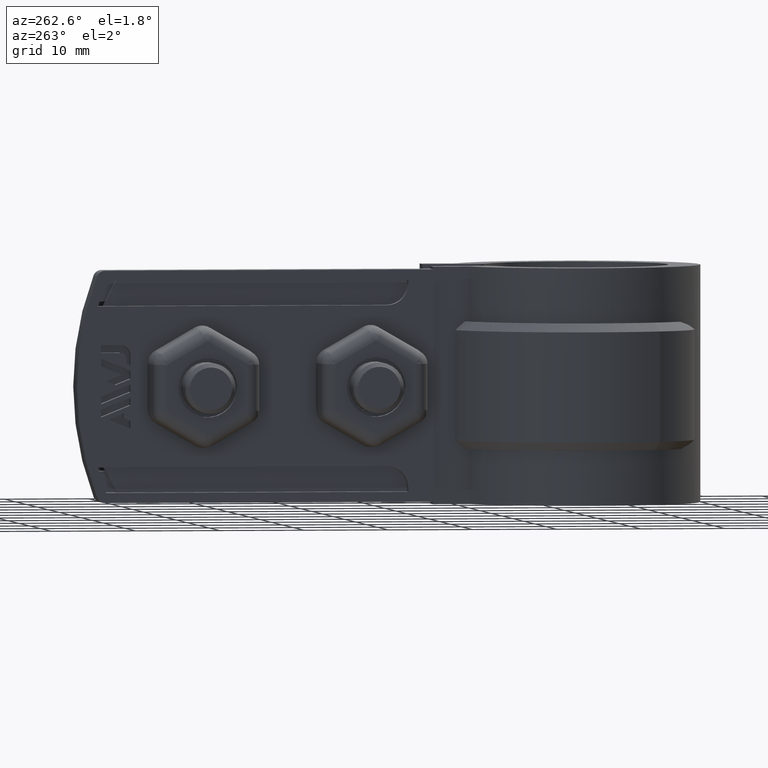
[diagram: clean part render]
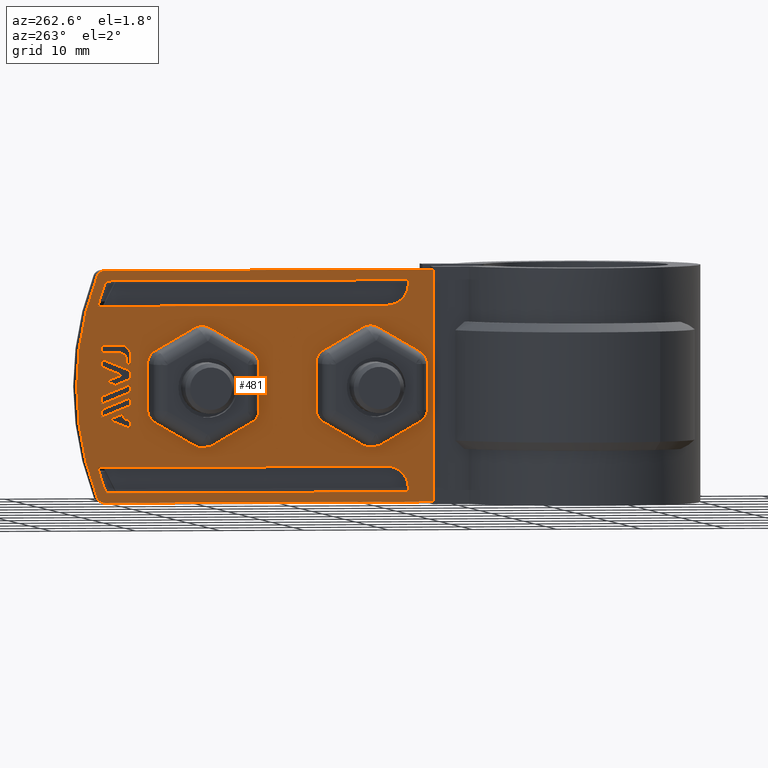
[diagram: same view with one face highlighted and labeled with its STEP entity id]
A machine part, auxiliary view. The second image highlights one B-rep face of the part: STEP entity #481.
In plain terms, the highlighted planar face has unit normal (-1, 0, -0).
Its self-contained STEP definition (entity closure, byte-faithful):
#481 = ADVANCED_FACE( '', ( #952, #953, #954, #955, #956, #957, #958, #959, #960, #961 ), #962, .T. );
#952 = FACE_BOUND( '', #2064, .T. );
#953 = FACE_BOUND( '', #2065, .T. );
#954 = FACE_BOUND( '', #2066, .T. );
#955 = FACE_BOUND( '', #2067, .T. );
#956 = FACE_BOUND( '', #2068, .T. );
#957 = FACE_OUTER_BOUND( '', #2069, .T. );
#958 = FACE_BOUND( '', #2070, .T. );
#959 = FACE_BOUND( '', #2071, .T. );
#960 = FACE_BOUND( '', #2072, .T. );
#961 = FACE_BOUND( '', #2073, .T. );
#962 = PLANE( '', #2074 );
#2064 = EDGE_LOOP( '', ( #4760, #4761, #4762, #4763, #4764 ) );
#2065 = EDGE_LOOP( '', ( #4765, #4766, #4767, #4768 ) );
#2066 = EDGE_LOOP( '', ( #4769, #4770, #4771, #4772, #4773 ) );
#2067 = EDGE_LOOP( '', ( #4774, #4775, #4776, #4777, #4778, #4779, #4780, #4781, #4782, #4783, #4784, #4785 ) );
#2068 = EDGE_LOOP( '', ( #4786, #4787, #4788, #4789, #4790, #4791, #4792, #4793, #4794, #4795, #4796, #4797 ) );
#2069 = EDGE_LOOP( '', ( #4798, #4799, #4800, #4801, #4802, #4803 ) );
#2070 = EDGE_LOOP( '', ( #4804, #4805, #4806, #4807, #4808 ) );
#2071 = EDGE_LOOP( '', ( #4809, #4810, #4811, #4812, #4813, #4814, #4815, #4816, #4817, #4818, #4819, #4820, #4821, #4822, #4823, #4824, #4825, #4826, #4827, #4828, #4829, #4830, #4831, #4832, #4833, #4834, #4835, #4836, #4837, #4838, #4839, #4840, #4841, #4842, #4843, #4844, #4845, #4846, #4847, #4848 ) );
#2072 = EDGE_LOOP( '', ( #4849, #4850, #4851, #4852, #4853, #4854, #4855 ) );
#2073 = EDGE_LOOP( '', ( #4856, #4857, #4858, #4859 ) );
#2074 = AXIS2_PLACEMENT_3D( '', #4860, #4861, #4862 );
#4760 = ORIENTED_EDGE( '', *, *, #6858, .T. );
#4761 = ORIENTED_EDGE( '', *, *, #6859, .T. );
#4762 = ORIENTED_EDGE( '', *, *, #6860, .T. );
#4763 = ORIENTED_EDGE( '', *, *, #6861, .T. );
#4764 = ORIENTED_EDGE( '', *, *, #6862, .T. );
#4765 = ORIENTED_EDGE( '', *, *, #6863, .T. );
#4766 = ORIENTED_EDGE( '', *, *, #6864, .T. );
#4767 = ORIENTED_EDGE( '', *, *, #6865, .T. );
#4768 = ORIENTED_EDGE( '', *, *, #6866, .T. );
#4769 = ORIENTED_EDGE( '', *, *, #6867, .T. );
#4770 = ORIENTED_EDGE( '', *, *, #6868, .F. );
#4771 = ORIENTED_EDGE( '', *, *, #6869, .T. );
#4772 = ORIENTED_EDGE( '', *, *, #6870, .T. );
#4773 = ORIENTED_EDGE( '', *, *, #6871, .T. );
#4774 = ORIENTED_EDGE( '', *, *, #6872, .F. );
#4775 = ORIENTED_EDGE( '', *, *, #6873, .F. );
#4776 = ORIENTED_EDGE( '', *, *, #6874, .F. );
#4777 = ORIENTED_EDGE( '', *, *, #6875, .F. );
#4778 = ORIENTED_EDGE( '', *, *, #6876, .F. );
#4779 = ORIENTED_EDGE( '', *, *, #6877, .F. );
#4780 = ORIENTED_EDGE( '', *, *, #6878, .F. );
#4781 = ORIENTED_EDGE( '', *, *, #6879, .F. );
#4782 = ORIENTED_EDGE( '', *, *, #6880, .F. );
#4783 = ORIENTED_EDGE( '', *, *, #6881, .F. );
#4784 = ORIENTED_EDGE( '', *, *, #6882, .F. );
#4785 = ORIENTED_EDGE( '', *, *, #6883, .F. );
#4786 = ORIENTED_EDGE( '', *, *, #6884, .F. );
#4787 = ORIENTED_EDGE( '', *, *, #6885, .F. );
#4788 = ORIENTED_EDGE( '', *, *, #6886, .F. );
#4789 = ORIENTED_EDGE( '', *, *, #6887, .F. );
#4790 = ORIENTED_EDGE( '', *, *, #6888, .F. );
#4791 = ORIENTED_EDGE( '', *, *, #6889, .F. );
#4792 = ORIENTED_EDGE( '', *, *, #6890, .F. );
#4793 = ORIENTED_EDGE( '', *, *, #6891, .F. );
#4794 = ORIENTED_EDGE( '', *, *, #6892, .F. );
#4795 = ORIENTED_EDGE( '', *, *, #6893, .F. );
#4796 = ORIENTED_EDGE( '', *, *, #6894, .F. );
#4797 = ORIENTED_EDGE( '', *, *, #6895, .F. );
#4798 = ORIENTED_EDGE( '', *, *, #6896, .T. );
#4799 = ORIENTED_EDGE( '', *, *, #6897, .T. );
#4800 = ORIENTED_EDGE( '', *, *, #6898, .T. );
#4801 = ORIENTED_EDGE( '', *, *, #6899, .T. );
#4802 = ORIENTED_EDGE( '', *, *, #6900, .T. );
#4803 = ORIENTED_EDGE( '', *, *, #6901, .T. );
#4804 = ORIENTED_EDGE( '', *, *, #6902, .T. );
#4805 = ORIENTED_EDGE( '', *, *, #6903, .T. );
#4806 = ORIENTED_EDGE( '', *, *, #6904, .T. );
#4807 = ORIENTED_EDGE( '', *, *, #6905, .T. );
#4808 = ORIENTED_EDGE( '', *, *, #6906, .F. );
#4809 = ORIENTED_EDGE( '', *, *, #6907, .T. );
#4810 = ORIENTED_EDGE( '', *, *, #6908, .T. );
#4811 = ORIENTED_EDGE( '', *, *, #6909, .T. );
#4812 = ORIENTED_EDGE( '', *, *, #6910, .T. );
#4813 = ORIENTED_EDGE( '', *, *, #6911, .T. );
#4814 = ORIENTED_EDGE( '', *, *, #6912, .T. );
#4815 = ORIENTED_EDGE( '', *, *, #6913, .T. );
#4816 = ORIENTED_EDGE( '', *, *, #6914, .T. );
#4817 = ORIENTED_EDGE( '', *, *, #6915, .T. );
#4818 = ORIENTED_EDGE( '', *, *, #6916, .T. );
#4819 = ORIENTED_EDGE( '', *, *, #6917, .T. );
#4820 = ORIENTED_EDGE( '', *, *, #6918, .T. );
#4821 = ORIENTED_EDGE( '', *, *, #6919, .T. );
#4822 = ORIENTED_EDGE( '', *, *, #6920, .T. );
#4823 = ORIENTED_EDGE( '', *, *, #6921, .T. );
#4824 = ORIENTED_EDGE( '', *, *, #6922, .T. );
#4825 = ORIENTED_EDGE( '', *, *, #6923, .T. );
#4826 = ORIENTED_EDGE( '', *, *, #6924, .T. );
#4827 = ORIENTED_EDGE( '', *, *, #6925, .T. );
#4828 = ORIENTED_EDGE( '', *, *, #6926, .T. );
#4829 = ORIENTED_EDGE( '', *, *, #6927, .T. );
#4830 = ORIENTED_EDGE( '', *, *, #6928, .T. );
#4831 = ORIENTED_EDGE( '', *, *, #6929, .T. );
#4832 = ORIENTED_EDGE( '', *, *, #6930, .T. );
#4833 = ORIENTED_EDGE( '', *, *, #6931, .T. );
#4834 = ORIENTED_EDGE( '', *, *, #6932, .T. );
#4835 = ORIENTED_EDGE( '', *, *, #6933, .T. );
#4836 = ORIENTED_EDGE( '', *, *, #6934, .T. );
#4837 = ORIENTED_EDGE( '', *, *, #6935, .T. );
#4838 = ORIENTED_EDGE( '', *, *, #6936, .T. );
#4839 = ORIENTED_EDGE( '', *, *, #6937, .T. );
#4840 = ORIENTED_EDGE( '', *, *, #6938, .T. );
#4841 = ORIENTED_EDGE( '', *, *, #6939, .T. );
#4842 = ORIENTED_EDGE( '', *, *, #6940, .T. );
#4843 = ORIENTED_EDGE( '', *, *, #6941, .T. );
#4844 = ORIENTED_EDGE( '', *, *, #6942, .T. );
#4845 = ORIENTED_EDGE( '', *, *, #6943, .T. );
#4846 = ORIENTED_EDGE( '', *, *, #6944, .T. );
#4847 = ORIENTED_EDGE( '', *, *, #6945, .T. );
#4848 = ORIENTED_EDGE( '', *, *, #6946, .T. );
#4849 = ORIENTED_EDGE( '', *, *, #6947, .T. );
#4850 = ORIENTED_EDGE( '', *, *, #6948, .T. );
#4851 = ORIENTED_EDGE( '', *, *, #6949, .T. );
#4852 = ORIENTED_EDGE( '', *, *, #6950, .T. );
#4853 = ORIENTED_EDGE( '', *, *, #6951, .T. );
#4854 = ORIENTED_EDGE( '', *, *, #6952, .T. );
#4855 = ORIENTED_EDGE( '', *, *, #6953, .T. );
#4856 = ORIENTED_EDGE( '', *, *, #6954, .T. );
#4857 = ORIENTED_EDGE( '', *, *, #6955, .T. );
#4858 = ORIENTED_EDGE( '', *, *, #6956, .T. );
#4859 = ORIENTED_EDGE( '', *, *, #6957, .T. );
#4860 = CARTESIAN_POINT( '', ( -6.70000000000003, 23.6997530837310, -12.4999999999987 ) );
#4861 = DIRECTION( '', ( -1.00000000000000, 7.00331983426594E-017, -2.99848040556711E-018 ) );
#4862 = DIRECTION( '', ( 7.00331983426594E-017, 1.00000000000000, 1.27307474615306E-016 ) );
#6858 = EDGE_CURVE( '', #8000, #8001, #8002, .T. );
#6859 = EDGE_CURVE( '', #8001, #8003, #8004, .T. );
#6860 = EDGE_CURVE( '', #8003, #8005, #8006, .T. );
#6861 = EDGE_CURVE( '', #8005, #8007, #8008, .T. );
#6862 = EDGE_CURVE( '', #8007, #8000, #8009, .T. );
#6863 = EDGE_CURVE( '', #8010, #8011, #8012, .T. );
#6864 = EDGE_CURVE( '', #8011, #8013, #8014, .T. );
#6865 = EDGE_CURVE( '', #8013, #8015, #8016, .T. );
#6866 = EDGE_CURVE( '', #8015, #8010, #8017, .T. );
#6867 = EDGE_CURVE( '', #8018, #8019, #8020, .F. );
#6868 = EDGE_CURVE( '', #8021, #8019, #8022, .T. );
#6869 = EDGE_CURVE( '', #8021, #8023, #8024, .T. );
#6870 = EDGE_CURVE( '', #8023, #8025, #8026, .T. );
#6871 = EDGE_CURVE( '', #8025, #8018, #8027, .T. );
#6872 = EDGE_CURVE( '', #8028, #8029, #8030, .F. );
#6873 = EDGE_CURVE( '', #8031, #8028, #8032, .T. );
#6874 = EDGE_CURVE( '', #8033, #8031, #8034, .F. );
#6875 = EDGE_CURVE( '', #8035, #8033, #8036, .T. );
#6876 = EDGE_CURVE( '', #8037, #8035, #8038, .F. );
#6877 = EDGE_CURVE( '', #8039, #8037, #8040, .T. );
#6878 = EDGE_CURVE( '', #8041, #8039, #8042, .F. );
#6879 = EDGE_CURVE( '', #8043, #8041, #8044, .T. );
#6880 = EDGE_CURVE( '', #8045, #8043, #8046, .F. );
#6881 = EDGE_CURVE( '', #8047, #8045, #8048, .T. );
#6882 = EDGE_CURVE( '', #8049, #8047, #8050, .F. );
#6883 = EDGE_CURVE( '', #8029, #8049, #8051, .T. );
#6884 = EDGE_CURVE( '', #8052, #8053, #8054, .F. );
#6885 = EDGE_CURVE( '', #8055, #8052, #8056, .T. );
#6886 = EDGE_CURVE( '', #8057, #8055, #8058, .F. );
#6887 = EDGE_CURVE( '', #8059, #8057, #8060, .T. );
#6888 = EDGE_CURVE( '', #8061, #8059, #8062, .F. );
#6889 = EDGE_CURVE( '', #8063, #8061, #8064, .T. );
#6890 = EDGE_CURVE( '', #8065, #8063, #8066, .F. );
#6891 = EDGE_CURVE( '', #8067, #8065, #8068, .T. );
#6892 = EDGE_CURVE( '', #8069, #8067, #8070, .F. );
#6893 = EDGE_CURVE( '', #8071, #8069, #8072, .T. );
#6894 = EDGE_CURVE( '', #8073, #8071, #8074, .F. );
#6895 = EDGE_CURVE( '', #8053, #8073, #8075, .T. );
#6896 = EDGE_CURVE( '', #8076, #8077, #8078, .T. );
#6897 = EDGE_CURVE( '', #8077, #8079, #8080, .T. );
#6898 = EDGE_CURVE( '', #8079, #8081, #8082, .T. );
#6899 = EDGE_CURVE( '', #8081, #8083, #8084, .T. );
#6900 = EDGE_CURVE( '', #8083, #8085, #8086, .T. );
#6901 = EDGE_CURVE( '', #8085, #8076, #8087, .T. );
#6902 = EDGE_CURVE( '', #8088, #8089, #8090, .F. );
#6903 = EDGE_CURVE( '', #8089, #8091, #8092, .T. );
#6904 = EDGE_CURVE( '', #8091, #8093, #8094, .T. );
#6905 = EDGE_CURVE( '', #8093, #8095, #8096, .T. );
#6906 = EDGE_CURVE( '', #8088, #8095, #8097, .T. );
#6907 = EDGE_CURVE( '', #8098, #8099, #8100, .T. );
#6908 = EDGE_CURVE( '', #8099, #8101, #8102, .T. );
#6909 = EDGE_CURVE( '', #8101, #8103, #8104, .T. );
#6910 = EDGE_CURVE( '', #8103, #8105, #8106, .T. );
#6911 = EDGE_CURVE( '', #8105, #8107, #8108, .T. );
#6912 = EDGE_CURVE( '', #8107, #8109, #8110, .T. );
#6913 = EDGE_CURVE( '', #8109, #8111, #8112, .T. );
#6914 = EDGE_CURVE( '', #8111, #8113, #8114, .T. );
#6915 = EDGE_CURVE( '', #8113, #8115, #8116, .T. );
#6916 = EDGE_CURVE( '', #8115, #8117, #8118, .T. );
#6917 = EDGE_CURVE( '', #8117, #8119, #8120, .T. );
#6918 = EDGE_CURVE( '', #8119, #8121, #8122, .T. );
#6919 = EDGE_CURVE( '', #8121, #8123, #8124, .T. );
#6920 = EDGE_CURVE( '', #8123, #8125, #8126, .T. );
#6921 = EDGE_CURVE( '', #8125, #8127, #8128, .T. );
#6922 = EDGE_CURVE( '', #8127, #8129, #8130, .T. );
#6923 = EDGE_CURVE( '', #8129, #8131, #8132, .T. );
#6924 = EDGE_CURVE( '', #8131, #8133, #8134, .T. );
#6925 = EDGE_CURVE( '', #8133, #8135, #8136, .T. );
#6926 = EDGE_CURVE( '', #8135, #8137, #8138, .T. );
#6927 = EDGE_CURVE( '', #8137, #8139, #8140, .T. );
#6928 = EDGE_CURVE( '', #8139, #8141, #8142, .T. );
#6929 = EDGE_CURVE( '', #8141, #8143, #8144, .T. );
#6930 = EDGE_CURVE( '', #8143, #8145, #8146, .T. );
#6931 = EDGE_CURVE( '', #8145, #8147, #8148, .T. );
#6932 = EDGE_CURVE( '', #8147, #8149, #8150, .T. );
#6933 = EDGE_CURVE( '', #8149, #8151, #8152, .T. );
#6934 = EDGE_CURVE( '', #8151, #8153, #8154, .T. );
#6935 = EDGE_CURVE( '', #8153, #8155, #8156, .T. );
#6936 = EDGE_CURVE( '', #8155, #8157, #8158, .T. );
#6937 = EDGE_CURVE( '', #8157, #8159, #8160, .T. );
#6938 = EDGE_CURVE( '', #8159, #8161, #8162, .T. );
#6939 = EDGE_CURVE( '', #8161, #8163, #8164, .T. );
#6940 = EDGE_CURVE( '', #8163, #8165, #8166, .T. );
#6941 = EDGE_CURVE( '', #8165, #8167, #8168, .T. );
#6942 = EDGE_CURVE( '', #8167, #8169, #8170, .T. );
#6943 = EDGE_CURVE( '', #8169, #8171, #8172, .T. );
#6944 = EDGE_CURVE( '', #8171, #8173, #8174, .T. );
#6945 = EDGE_CURVE( '', #8173, #8175, #8176, .T. );
#6946 = EDGE_CURVE( '', #8175, #8098, #8177, .F. );
#6947 = EDGE_CURVE( '', #8178, #8179, #8180, .T. );
#6948 = EDGE_CURVE( '', #8179, #8181, #8182, .T. );
#6949 = EDGE_CURVE( '', #8181, #8183, #8184, .T. );
#6950 = EDGE_CURVE( '', #8183, #8185, #8186, .T. );
#6951 = EDGE_CURVE( '', #8185, #8187, #8188, .T. );
#6952 = EDGE_CURVE( '', #8187, #8189, #8190, .T. );
#6953 = EDGE_CURVE( '', #8189, #8178, #8191, .T. );
#6954 = EDGE_CURVE( '', #8192, #8193, #8194, .T. );
#6955 = EDGE_CURVE( '', #8193, #8195, #8196, .T. );
#6956 = EDGE_CURVE( '', #8195, #8197, #8198, .T. );
#6957 = EDGE_CURVE( '', #8197, #8192, #8199, .T. );
#8000 = VERTEX_POINT( '', #10986 );
#8001 = VERTEX_POINT( '', #10987 );
#8002 = LINE( '', #10988, #10989 );
#8003 = VERTEX_POINT( '', #10990 );
#8004 = LINE( '', #10991, #10992 );
#8005 = VERTEX_POINT( '', #10993 );
#8006 = LINE( '', #10994, #10995 );
#8007 = VERTEX_POINT( '', #10996 );
#8008 = LINE( '', #10997, #10998 );
#8009 = LINE( '', #10999, #11000 );
#8010 = VERTEX_POINT( '', #11001 );
#8011 = VERTEX_POINT( '', #11002 );
#8012 = LINE( '', #11003, #11004 );
#8013 = VERTEX_POINT( '', #11005 );
#8014 = LINE( '', #11006, #11007 );
#8015 = VERTEX_POINT( '', #11008 );
#8016 = LINE( '', #11009, #11010 );
#8017 = LINE( '', #11011, #11012 );
#8018 = VERTEX_POINT( '', #11013 );
#8019 = VERTEX_POINT( '', #11014 );
#8020 = CIRCLE( '', #11015, 35.2000000000000 );
#8021 = VERTEX_POINT( '', #11016 );
#8022 = LINE( '', #11017, #11018 );
#8023 = VERTEX_POINT( '', #11019 );
#8024 = LINE( '', #11020, #11021 );
#8025 = VERTEX_POINT( '', #11022 );
#8026 = CIRCLE( '', #11023, 2.50000000000000 );
#8027 = LINE( '', #11024, #11025 );
#8028 = VERTEX_POINT( '', #11026 );
#8029 = VERTEX_POINT( '', #11027 );
#8030 = LINE( '', #11028, #11029 );
#8031 = VERTEX_POINT( '', #11030 );
#8032 = CIRCLE( '', #11031, 1.77252045227181 );
#8033 = VERTEX_POINT( '', #11032 );
#8034 = LINE( '', #11033, #11034 );
#8035 = VERTEX_POINT( '', #11035 );
#8036 = CIRCLE( '', #11036, 1.77252045227181 );
#8037 = VERTEX_POINT( '', #11037 );
#8038 = LINE( '', #11038, #11039 );
#8039 = VERTEX_POINT( '', #11040 );
#8040 = CIRCLE( '', #11041, 1.77252045227182 );
#8041 = VERTEX_POINT( '', #11042 );
#8042 = LINE( '', #11043, #11044 );
#8043 = VERTEX_POINT( '', #11045 );
#8044 = CIRCLE( '', #11046, 1.77252045227182 );
#8045 = VERTEX_POINT( '', #11047 );
#8046 = LINE( '', #11048, #11049 );
#8047 = VERTEX_POINT( '', #11050 );
#8048 = CIRCLE( '', #11051, 1.77252045227181 );
#8049 = VERTEX_POINT( '', #11052 );
#8050 = LINE( '', #11053, #11054 );
#8051 = CIRCLE( '', #11055, 1.77252045227182 );
#8052 = VERTEX_POINT( '', #11056 );
#8053 = VERTEX_POINT( '', #11057 );
#8054 = LINE( '', #11058, #11059 );
#8055 = VERTEX_POINT( '', #11060 );
#8056 = CIRCLE( '', #11061, 1.77252045227181 );
#8057 = VERTEX_POINT( '', #11062 );
#8058 = LINE( '', #11063, #11064 );
#8059 = VERTEX_POINT( '', #11065 );
#8060 = CIRCLE( '', #11066, 1.77252045227181 );
#8061 = VERTEX_POINT( '', #11067 );
#8062 = LINE( '', #11068, #11069 );
#8063 = VERTEX_POINT( '', #11070 );
#8064 = CIRCLE( '', #11071, 1.77252045227181 );
#8065 = VERTEX_POINT( '', #11072 );
#8066 = LINE( '', #11073, #11074 );
#8067 = VERTEX_POINT( '', #11075 );
#8068 = CIRCLE( '', #11076, 1.77252045227182 );
#8069 = VERTEX_POINT( '', #11077 );
#8070 = LINE( '', #11078, #11079 );
#8071 = VERTEX_POINT( '', #11080 );
#8072 = CIRCLE( '', #11081, 1.77252045227181 );
#8073 = VERTEX_POINT( '', #11082 );
#8074 = LINE( '', #11083, #11084 );
#8075 = CIRCLE( '', #11085, 1.77252045227182 );
#8076 = VERTEX_POINT( '', #11086 );
#8077 = VERTEX_POINT( '', #11087 );
#8078 = CIRCLE( '', #11088, 36.4000000000000 );
#8079 = VERTEX_POINT( '', #11089 );
#8080 = CIRCLE( '', #11090, 1.00000000000000 );
#8081 = VERTEX_POINT( '', #11091 );
#8082 = LINE( '', #11092, #11093 );
#8083 = VERTEX_POINT( '', #11094 );
#8084 = LINE( '', #11095, #11096 );
#8085 = VERTEX_POINT( '', #11097 );
#8086 = LINE( '', #11098, #11099 );
#8087 = CIRCLE( '', #11100, 1.00000000000000 );
#8088 = VERTEX_POINT( '', #11101 );
#8089 = VERTEX_POINT( '', #11102 );
#8090 = CIRCLE( '', #11103, 35.2000000000000 );
#8091 = VERTEX_POINT( '', #11104 );
#8092 = LINE( '', #11105, #11106 );
#8093 = VERTEX_POINT( '', #11107 );
#8094 = CIRCLE( '', #11108, 2.50000000000000 );
#8095 = VERTEX_POINT( '', #11109 );
#8096 = LINE( '', #11110, #11111 );
#8097 = LINE( '', #11112, #11113 );
#8098 = VERTEX_POINT( '', #11114 );
#8099 = VERTEX_POINT( '', #11115 );
#8100 = LINE( '', #11116, #11117 );
#8101 = VERTEX_POINT( '', #11118 );
#8102 = LINE( '', #11119, #11120 );
#8103 = VERTEX_POINT( '', #11121 );
#8104 = LINE( '', #11122, #11123 );
#8105 = VERTEX_POINT( '', #11124 );
#8106 = LINE( '', #11125, #11126 );
#8107 = VERTEX_POINT( '', #11127 );
#8108 = LINE( '', #11128, #11129 );
#8109 = VERTEX_POINT( '', #11130 );
#8110 = LINE( '', #11131, #11132 );
#8111 = VERTEX_POINT( '', #11133 );
#8112 = LINE( '', #11134, #11135 );
#8113 = VERTEX_POINT( '', #11136 );
#8114 = LINE( '', #11137, #11138 );
#8115 = VERTEX_POINT( '', #11139 );
#8116 = LINE( '', #11140, #11141 );
#8117 = VERTEX_POINT( '', #11142 );
#8118 = LINE( '', #11143, #11144 );
#8119 = VERTEX_POINT( '', #11145 );
#8120 = LINE( '', #11146, #11147 );
#8121 = VERTEX_POINT( '', #11148 );
#8122 = LINE( '', #11149, #11150 );
#8123 = VERTEX_POINT( '', #11151 );
#8124 = LINE( '', #11152, #11153 );
#8125 = VERTEX_POINT( '', #11154 );
#8126 = LINE( '', #11155, #11156 );
#8127 = VERTEX_POINT( '', #11157 );
#8128 = LINE( '', #11158, #11159 );
#8129 = VERTEX_POINT( '', #11160 );
#8130 = LINE( '', #11161, #11162 );
#8131 = VERTEX_POINT( '', #11163 );
#8132 = LINE( '', #11164, #11165 );
#8133 = VERTEX_POINT( '', #11166 );
#8134 = LINE( '', #11167, #11168 );
#8135 = VERTEX_POINT( '', #11169 );
#8136 = LINE( '', #11170, #11171 );
#8137 = VERTEX_POINT( '', #11172 );
#8138 = LINE( '', #11173, #11174 );
#8139 = VERTEX_POINT( '', #11175 );
#8140 = LINE( '', #11176, #11177 );
#8141 = VERTEX_POINT( '', #11178 );
#8142 = LINE( '', #11179, #11180 );
#8143 = VERTEX_POINT( '', #11181 );
#8144 = LINE( '', #11182, #11183 );
#8145 = VERTEX_POINT( '', #11184 );
#8146 = LINE( '', #11185, #11186 );
#8147 = VERTEX_POINT( '', #11187 );
#8148 = LINE( '', #11188, #11189 );
#8149 = VERTEX_POINT( '', #11190 );
#8150 = LINE( '', #11191, #11192 );
#8151 = VERTEX_POINT( '', #11193 );
#8152 = LINE( '', #11194, #11195 );
#8153 = VERTEX_POINT( '', #11196 );
#8154 = LINE( '', #11197, #11198 );
#8155 = VERTEX_POINT( '', #11199 );
#8156 = LINE( '', #11200, #11201 );
#8157 = VERTEX_POINT( '', #11202 );
#8158 = LINE( '', #11203, #11204 );
#8159 = VERTEX_POINT( '', #11205 );
#8160 = LINE( '', #11206, #11207 );
#8161 = VERTEX_POINT( '', #11208 );
#8162 = LINE( '', #11209, #11210 );
#8163 = VERTEX_POINT( '', #11211 );
#8164 = LINE( '', #11212, #11213 );
#8165 = VERTEX_POINT( '', #11214 );
#8166 = LINE( '', #11215, #11216 );
#8167 = VERTEX_POINT( '', #11217 );
#8168 = LINE( '', #11218, #11219 );
#8169 = VERTEX_POINT( '', #11220 );
#8170 = LINE( '', #11221, #11222 );
#8171 = VERTEX_POINT( '', #11223 );
#8172 = LINE( '', #11224, #11225 );
#8173 = VERTEX_POINT( '', #11226 );
#8174 = LINE( '', #11227, #11228 );
#8175 = VERTEX_POINT( '', #11229 );
#8176 = LINE( '', #11230, #11231 );
#8177 = CIRCLE( '', #11232, 1.16712912069193 );
#8178 = VERTEX_POINT( '', #11233 );
#8179 = VERTEX_POINT( '', #11234 );
#8180 = LINE( '', #11235, #11236 );
#8181 = VERTEX_POINT( '', #11237 );
#8182 = LINE( '', #11238, #11239 );
#8183 = VERTEX_POINT( '', #11240 );
#8184 = LINE( '', #11241, #11242 );
#8185 = VERTEX_POINT( '', #11243 );
#8186 = LINE( '', #11244, #11245 );
#8187 = VERTEX_POINT( '', #11246 );
#8188 = LINE( '', #11247, #11248 );
#8189 = VERTEX_POINT( '', #11249 );
#8190 = LINE( '', #11250, #11251 );
#8191 = LINE( '', #11252, #11253 );
#8192 = VERTEX_POINT( '', #11254 );
#8193 = VERTEX_POINT( '', #11255 );
#8194 = LINE( '', #11256, #11257 );
#8195 = VERTEX_POINT( '', #11258 );
#8196 = LINE( '', #11259, #11260 );
#8197 = VERTEX_POINT( '', #11261 );
#8198 = LINE( '', #11262, #11263 );
#8199 = LINE( '', #11264, #11265 );
#10986 = CARTESIAN_POINT( '', ( -6.70000000000003, 54.5114511005057, -15.6427309999987 ) );
#10987 = CARTESIAN_POINT( '', ( -6.70000000000003, 54.5114511005057, -16.2049013519987 ) );
#10988 = CARTESIAN_POINT( '', ( -6.70000000000003, 54.5114511005057, -12.4999999999987 ) );
#10989 = VECTOR( '', #12862, 1000.00000000000 );
#10990 = CARTESIAN_POINT( '', ( -6.70000000000003, 53.7034451965057, -16.5315944439987 ) );
#10991 = CARTESIAN_POINT( '', ( -6.70000000000003, 29.3164649683600, -26.3917426630093 ) );
#10992 = VECTOR( '', #12863, 1000.00000000000 );
#10993 = CARTESIAN_POINT( '', ( -6.70000000000003, 53.7034451965057, -17.4353519199987 ) );
#10994 = CARTESIAN_POINT( '', ( -6.70000000000003, 53.7034451965057, -12.4999999999987 ) );
#10995 = VECTOR( '', #12864, 1000.00000000000 );
#10996 = CARTESIAN_POINT( '', ( -6.70000000000003, 56.3264823105057, -16.3757128079987 ) );
#10997 = CARTESIAN_POINT( '', ( -6.70000000000003, 29.6232733545009, -27.1631181690086 ) );
#10998 = VECTOR( '', #12865, 1000.00000000000 );
#10999 = CARTESIAN_POINT( '', ( -6.70000000000003, 26.9289317412057, -4.50381239750576 ) );
#11000 = VECTOR( '', #12866, 1000.00000000000 );
#11001 = CARTESIAN_POINT( '', ( -6.70000000000003, 57.2018840205057, -14.5449628859987 ) );
#11002 = CARTESIAN_POINT( '', ( -6.70000000000003, 57.2018840205057, -13.6409432239987 ) );
#11003 = CARTESIAN_POINT( '', ( -6.70000000000003, 57.2018840205057, -12.4999999999987 ) );
#11004 = VECTOR( '', #12867, 1000.00000000000 );
#11005 = CARTESIAN_POINT( '', ( -6.70000000000003, 53.7034451965057, -12.2273304499987 ) );
#11006 = CARTESIAN_POINT( '', ( -6.70000000000003, 28.0056647629391, -1.84363860575993 ) );
#11007 = VECTOR( '', #12868, 1000.00000000000 );
#11008 = CARTESIAN_POINT( '', ( -6.70000000000003, 53.7034451965057, -13.1313508899987 ) );
#11009 = CARTESIAN_POINT( '', ( -6.70000000000003, 53.7034451965057, -12.4999999999987 ) );
#11010 = VECTOR( '', #12869, 1000.00000000000 );
#11011 = CARTESIAN_POINT( '', ( -6.70000000000003, 27.6916439357644, -2.62077856056483 ) );
#11012 = VECTOR( '', #12870, 1000.00000000000 );
#11013 = CARTESIAN_POINT( '', ( -6.70000000000003, 57.5935578273711, -2.99999999999873 ) );
#11014 = CARTESIAN_POINT( '', ( -6.70000000000004, 56.6055276529461, 1.26417774396756E-012 ) );
#11015 = AXIS2_PLACEMENT_3D( '', #12871, #12872, #12873 );
#11016 = CARTESIAN_POINT( '', ( -6.70000000000003, 20.6997530837310, 1.27000128323519E-012 ) );
#11017 = CARTESIAN_POINT( '', ( -6.70000000000003, 17.6997530837310, 1.27173600671117E-012 ) );
#11018 = VECTOR( '', #12874, 1000.00000000000 );
#11019 = CARTESIAN_POINT( '', ( -6.70000000000003, 20.6997530837310, -0.499999999998729 ) );
#11020 = CARTESIAN_POINT( '', ( -6.70000000000003, 20.6997530837310, 1.20000000000126 ) );
#11021 = VECTOR( '', #12875, 1000.00000000000 );
#11022 = CARTESIAN_POINT( '', ( -6.70000000000003, 23.1997530837310, -2.99999999999873 ) );
#11023 = AXIS2_PLACEMENT_3D( '', #12876, #12877, #12878 );
#11024 = CARTESIAN_POINT( '', ( -6.70000000000003, 23.1997530837310, -2.99999999999873 ) );
#11025 = VECTOR( '', #12879, 1000.00000000000 );
#11026 = CARTESIAN_POINT( '', ( -6.70000000000003, 51.6722735360028, -9.78645373480748 ) );
#11027 = CARTESIAN_POINT( '', ( -6.70000000000003, 51.6722735360028, -15.2135462651900 ) );
#11028 = CARTESIAN_POINT( '', ( -6.70000000000003, 51.6722735360028, -15.2135462651900 ) );
#11029 = VECTOR( '', #12880, 1000.00000000000 );
#11030 = CARTESIAN_POINT( '', ( -6.70000000000003, 50.7860133098669, -8.25140599441261 ) );
#11031 = AXIS2_PLACEMENT_3D( '', #12881, #12882, #12883 );
#11032 = CARTESIAN_POINT( '', ( -6.70000000000003, 46.0860133098669, -5.53785972922138 ) );
#11033 = CARTESIAN_POINT( '', ( -6.70000000000003, 53.1360133098669, -9.60817912700822 ) );
#11034 = VECTOR( '', #12884, 1000.00000000000 );
#11035 = CARTESIAN_POINT( '', ( -6.70000000000003, 44.3134928575951, -5.53785972922137 ) );
#11036 = AXIS2_PLACEMENT_3D( '', #12885, #12886, #12887 );
#11037 = CARTESIAN_POINT( '', ( -6.70000000000003, 39.6134928575951, -8.25140599441261 ) );
#11038 = CARTESIAN_POINT( '', ( -6.70000000000003, 44.3134928575951, -5.53785972922137 ) );
#11039 = VECTOR( '', #12888, 1000.00000000000 );
#11040 = CARTESIAN_POINT( '', ( -6.70000000000003, 38.7272326314592, -9.78645373480748 ) );
#11041 = AXIS2_PLACEMENT_3D( '', #12889, #12890, #12891 );
#11042 = CARTESIAN_POINT( '', ( -6.70000000000003, 38.7272326314592, -15.2135462651900 ) );
#11043 = CARTESIAN_POINT( '', ( -6.70000000000003, 38.7272326314592, -15.2135462651900 ) );
#11044 = VECTOR( '', #12892, 1000.00000000000 );
#11045 = CARTESIAN_POINT( '', ( -6.70000000000003, 39.6134928575951, -16.7485940055848 ) );
#11046 = AXIS2_PLACEMENT_3D( '', #12893, #12894, #12895 );
#11047 = CARTESIAN_POINT( '', ( -6.70000000000003, 44.3134928575951, -19.4621402707761 ) );
#11048 = CARTESIAN_POINT( '', ( -6.70000000000003, 46.6634928575951, -20.8189134033717 ) );
#11049 = VECTOR( '', #12896, 1000.00000000000 );
#11050 = CARTESIAN_POINT( '', ( -6.70000000000003, 46.0860133098669, -19.4621402707761 ) );
#11051 = AXIS2_PLACEMENT_3D( '', #12897, #12898, #12899 );
#11052 = CARTESIAN_POINT( '', ( -6.70000000000003, 50.7860133098669, -16.7485940055848 ) );
#11053 = CARTESIAN_POINT( '', ( -6.70000000000003, 50.7860133098669, -16.7485940055848 ) );
#11054 = VECTOR( '', #12900, 1000.00000000000 );
#11055 = AXIS2_PLACEMENT_3D( '', #12901, #12902, #12903 );
#11056 = CARTESIAN_POINT( '', ( -6.70000000000003, 31.6722735360028, -9.78645373480749 ) );
#11057 = CARTESIAN_POINT( '', ( -6.70000000000003, 31.6722735360028, -15.2135462651900 ) );
#11058 = CARTESIAN_POINT( '', ( -6.70000000000003, 31.6722735360028, -15.2135462651900 ) );
#11059 = VECTOR( '', #12904, 1000.00000000000 );
#11060 = CARTESIAN_POINT( '', ( -6.70000000000003, 30.7860133098669, -8.25140599441262 ) );
#11061 = AXIS2_PLACEMENT_3D( '', #12905, #12906, #12907 );
#11062 = CARTESIAN_POINT( '', ( -6.70000000000003, 26.0860133098669, -5.53785972922137 ) );
#11063 = CARTESIAN_POINT( '', ( -6.70000000000003, 33.1360133098669, -9.60817912700823 ) );
#11064 = VECTOR( '', #12908, 1000.00000000000 );
#11065 = CARTESIAN_POINT( '', ( -6.70000000000003, 24.3134928575951, -5.53785972922137 ) );
#11066 = AXIS2_PLACEMENT_3D( '', #12909, #12910, #12911 );
#11067 = CARTESIAN_POINT( '', ( -6.70000000000003, 19.6134928575951, -8.25140599441262 ) );
#11068 = CARTESIAN_POINT( '', ( -6.70000000000003, 24.3134928575951, -5.53785972922137 ) );
#11069 = VECTOR( '', #12912, 1000.00000000000 );
#11070 = CARTESIAN_POINT( '', ( -6.70000000000003, 18.7272326314592, -9.78645373480748 ) );
#11071 = AXIS2_PLACEMENT_3D( '', #12913, #12914, #12915 );
#11072 = CARTESIAN_POINT( '', ( -6.70000000000003, 18.7272326314592, -15.2135462651900 ) );
#11073 = CARTESIAN_POINT( '', ( -6.70000000000003, 18.7272326314592, -15.2135462651900 ) );
#11074 = VECTOR( '', #12916, 1000.00000000000 );
#11075 = CARTESIAN_POINT( '', ( -6.70000000000003, 19.6134928575951, -16.7485940055848 ) );
#11076 = AXIS2_PLACEMENT_3D( '', #12917, #12918, #12919 );
#11077 = CARTESIAN_POINT( '', ( -6.70000000000003, 24.3134928575951, -19.4621402707761 ) );
#11078 = CARTESIAN_POINT( '', ( -6.70000000000003, 26.6634928575951, -20.8189134033717 ) );
#11079 = VECTOR( '', #12920, 1000.00000000000 );
#11080 = CARTESIAN_POINT( '', ( -6.70000000000003, 26.0860133098669, -19.4621402707761 ) );
#11081 = AXIS2_PLACEMENT_3D( '', #12921, #12922, #12923 );
#11082 = CARTESIAN_POINT( '', ( -6.70000000000003, 30.7860133098669, -16.7485940055848 ) );
#11083 = CARTESIAN_POINT( '', ( -6.70000000000003, 30.7860133098669, -16.7485940055848 ) );
#11084 = VECTOR( '', #12924, 1000.00000000000 );
#11085 = AXIS2_PLACEMENT_3D( '', #12925, #12926, #12927 );
#11086 = CARTESIAN_POINT( '', ( -6.70000000000003, 57.6766402865315, 0.558757062148157 ) );
#11087 = CARTESIAN_POINT( '', ( -6.70000000000003, 57.6766402865315, -25.5587570621456 ) );
#11088 = AXIS2_PLACEMENT_3D( '', #12928, #12929, #12930 );
#11089 = CARTESIAN_POINT( '', ( -6.70000000000003, 56.7432093194216, -26.1999999999987 ) );
#11090 = AXIS2_PLACEMENT_3D( '', #12931, #12932, #12933 );
#11091 = CARTESIAN_POINT( '', ( -6.70000000000003, 17.6997530837310, -26.1999999999987 ) );
#11092 = CARTESIAN_POINT( '', ( -6.70000000000003, 20.6997530837310, -26.1999999999987 ) );
#11093 = VECTOR( '', #12934, 1000.00000000000 );
#11094 = CARTESIAN_POINT( '', ( -6.70000000000003, 17.6997530837310, 1.20000000000126 ) );
#11095 = CARTESIAN_POINT( '', ( -6.70000000000003, 17.6997530837310, -26.1999999999987 ) );
#11096 = VECTOR( '', #12935, 1000.00000000000 );
#11097 = CARTESIAN_POINT( '', ( -6.70000000000003, 56.7432093194216, 1.20000000000127 ) );
#11098 = CARTESIAN_POINT( '', ( -6.70000000000003, 17.6997530837310, 1.20000000000126 ) );
#11099 = VECTOR( '', #12936, 1000.00000000000 );
#11100 = AXIS2_PLACEMENT_3D( '', #12937, #12938, #12939 );
#11101 = CARTESIAN_POINT( '', ( -6.70000000000003, 56.6055276529461, -24.9999999999987 ) );
#11102 = CARTESIAN_POINT( '', ( -6.70000000000004, 57.5935578273711, -21.9999999999987 ) );
#11103 = AXIS2_PLACEMENT_3D( '', #12940, #12941, #12942 );
#11104 = CARTESIAN_POINT( '', ( -6.70000000000003, 23.1997530837310, -21.9999999999987 ) );
#11105 = CARTESIAN_POINT( '', ( -6.70000000000003, 58.4236641537704, -21.9999999999987 ) );
#11106 = VECTOR( '', #12943, 1000.00000000000 );
#11107 = CARTESIAN_POINT( '', ( -6.70000000000003, 20.6997530837310, -24.4999999999987 ) );
#11108 = AXIS2_PLACEMENT_3D( '', #12944, #12945, #12946 );
#11109 = CARTESIAN_POINT( '', ( -6.70000000000003, 20.6997530837310, -24.9999999999987 ) );
#11110 = CARTESIAN_POINT( '', ( -6.70000000000003, 20.6997530837310, -24.4999999999987 ) );
#11111 = VECTOR( '', #12947, 1000.00000000000 );
#11112 = CARTESIAN_POINT( '', ( -6.70000000000003, 56.3914951602861, -24.9999999999987 ) );
#11113 = VECTOR( '', #12948, 1000.00000000000 );
#11114 = CARTESIAN_POINT( '', ( -6.70000000000003, 53.7034452036443, -8.74297971174737 ) );
#11115 = CARTESIAN_POINT( '', ( -6.70000000000003, 53.7034451965057, -9.97073444799872 ) );
#11116 = CARTESIAN_POINT( '', ( -6.70000000000003, 53.7034451817997, -12.5000001744502 ) );
#11117 = VECTOR( '', #12949, 1000.00000000000 );
#11118 = CARTESIAN_POINT( '', ( -6.70000000000003, 54.2121848425057, -9.76519073799873 ) );
#11119 = CARTESIAN_POINT( '', ( -6.70000000000003, 27.0316720133016, -20.7468067581841 ) );
#11120 = VECTOR( '', #12950, 1000.00000000000 );
#11121 = CARTESIAN_POINT( '', ( -6.70000000000003, 54.2121848425057, -9.26826424399873 ) );
#11122 = CARTESIAN_POINT( '', ( -6.70000000000003, 54.2121848425057, -12.4999999999987 ) );
#11123 = VECTOR( '', #12951, 1000.00000000000 );
#11124 = CARTESIAN_POINT( '', ( -6.70000000000003, 54.2128819305057, -9.23547076599873 ) );
#11125 = CARTESIAN_POINT( '', ( -6.70000000000003, 54.1297381497261, -13.1468474441670 ) );
#11126 = VECTOR( '', #12952, 1000.00000000000 );
#11127 = CARTESIAN_POINT( '', ( -6.70000000000003, 54.2149654145057, -9.20269440399874 ) );
#11128 = CARTESIAN_POINT( '', ( -6.70000000000003, 53.8834029943167, -14.4186739410073 ) );
#11129 = VECTOR( '', #12953, 1000.00000000000 );
#11130 = CARTESIAN_POINT( '', ( -6.70000000000003, 54.2184244025057, -9.17002851799873 ) );
#11131 = CARTESIAN_POINT( '', ( -6.70000000000003, 53.5313223098262, -15.6588624283441 ) );
#11132 = VECTOR( '', #12954, 1000.00000000000 );
#11133 = CARTESIAN_POINT( '', ( -6.70000000000003, 54.2232472245057, -9.13756568999873 ) );
#11134 = CARTESIAN_POINT( '', ( -6.70000000000003, 53.0753486926695, -16.8641690356057 ) );
#11135 = VECTOR( '', #12955, 1000.00000000000 );
#11136 = CARTESIAN_POINT( '', ( -6.70000000000003, 54.2294222105057, -9.10540005799872 ) );
#11137 = CARTESIAN_POINT( '', ( -6.70000000000003, 52.5157525343318, -18.0319414579935 ) );
#11138 = VECTOR( '', #12956, 1000.00000000000 );
#11139 = CARTESIAN_POINT( '', ( -6.70000000000003, 54.2383240865057, -9.06837192599873 ) );
#11140 = CARTESIAN_POINT( '', ( -6.70000000000003, 51.7898312037778, -19.2530922773802 ) );
#11141 = VECTOR( '', #12957, 1000.00000000000 );
#11142 = CARTESIAN_POINT( '', ( -6.70000000000003, 54.2490667105057, -9.03175224399872 ) );
#11143 = CARTESIAN_POINT( '', ( -6.70000000000003, 50.8915590694930, -20.4768947088608 ) );
#11144 = VECTOR( '', #12958, 1000.00000000000 );
#11145 = CARTESIAN_POINT( '', ( -6.70000000000003, 54.2615932885057, -8.99566860399873 ) );
#11146 = CARTESIAN_POINT( '', ( -6.70000000000003, 49.8888493108650, -21.5916480886838 ) );
#11147 = VECTOR( '', #12959, 1000.00000000000 );
#11148 = CARTESIAN_POINT( '', ( -6.70000000000003, 54.2758462485057, -8.96024704199872 ) );
#11149 = CARTESIAN_POINT( '', ( -6.70000000000003, 48.7892646894591, -22.5955402626219 ) );
#11150 = VECTOR( '', #12960, 1000.00000000000 );
#11151 = CARTESIAN_POINT( '', ( -6.70000000000003, 54.2917680185057, -8.92561592799873 ) );
#11152 = CARTESIAN_POINT( '', ( -6.70000000000003, 47.5971628564225, -23.4869137330230 ) );
#11153 = VECTOR( '', #12961, 1000.00000000000 );
#11154 = CARTESIAN_POINT( '', ( -6.70000000000003, 54.3093010265057, -8.89190129799873 ) );
#11155 = CARTESIAN_POINT( '', ( -6.70000000000003, 46.3164168961625, -24.2616046077482 ) );
#11156 = VECTOR( '', #12962, 1000.00000000000 );
#11157 = CARTESIAN_POINT( '', ( -6.70000000000003, 54.3283869225057, -8.85923152199873 ) );
#11158 = CARTESIAN_POINT( '', ( -6.70000000000003, 44.9490869754114, -24.9139993101247 ) );
#11159 = VECTOR( '', #12963, 1000.00000000000 );
#11160 = CARTESIAN_POINT( '', ( -6.70000000000003, 54.3491556325057, -8.82742610399872 ) );
#11161 = CARTESIAN_POINT( '', ( -6.70000000000003, 43.5057298444011, -25.4331608724369 ) );
#11162 = VECTOR( '', #12964, 1000.00000000000 );
#11163 = CARTESIAN_POINT( '', ( -6.70000000000003, 54.3715060165057, -8.79662508399873 ) );
#11164 = CARTESIAN_POINT( '', ( -6.70000000000003, 42.0315735392185, -25.8022616328655 ) );
#11165 = VECTOR( '', #12965, 1000.00000000000 );
#11166 = CARTESIAN_POINT( '', ( -6.70000000000003, 54.3953493825057, -8.76692337799873 ) );
#11167 = CARTESIAN_POINT( '', ( -6.70000000000003, 40.5438351289348, -26.0217691919013 ) );
#11168 = VECTOR( '', #12966, 1000.00000000000 );
#11169 = CARTESIAN_POINT( '', ( -6.70000000000003, 54.4205970385057, -8.73841356799873 ) );
#11170 = CARTESIAN_POINT( '', ( -6.70000000000003, 39.0505701355627, -26.0943434292811 ) );
#11171 = VECTOR( '', #12967, 1000.00000000000 );
#11172 = CARTESIAN_POINT( '', ( -6.70000000000003, 54.4471610705057, -8.71119056999873 ) );
#11173 = CARTESIAN_POINT( '', ( -6.70000000000003, 37.5562629860281, -26.0210961134009 ) );
#11174 = VECTOR( '', #12968, 1000.00000000000 );
#11175 = CARTESIAN_POINT( '', ( -6.70000000000003, 54.4749512305057, -8.68534852199873 ) );
#11176 = CARTESIAN_POINT( '', ( -6.70000000000003, 36.0686614640895, -25.8013429475664 ) );
#11177 = VECTOR( '', #12969, 1000.00000000000 );
#11178 = CARTESIAN_POINT( '', ( -6.70000000000003, 54.5038803825057, -8.66098078399873 ) );
#11179 = CARTESIAN_POINT( '', ( -6.70000000000003, 34.5930220676914, -25.4323876600248 ) );
#11180 = VECTOR( '', #12970, 1000.00000000000 );
#11181 = CARTESIAN_POINT( '', ( -6.70000000000003, 54.5335377425057, -8.63839777799873 ) );
#11182 = CARTESIAN_POINT( '', ( -6.70000000000003, 33.1550877823955, -24.9173134913335 ) );
#11183 = VECTOR( '', #12971, 1000.00000000000 );
#11184 = CARTESIAN_POINT( '', ( -6.70000000000003, 54.5643379845057, -8.61721361599873 ) );
#11185 = CARTESIAN_POINT( '', ( -6.70000000000003, 31.7986788434354, -24.2752532924791 ) );
#11186 = VECTOR( '', #12972, 1000.00000000000 );
#11187 = CARTESIAN_POINT( '', ( -6.70000000000003, 54.5961753005057, -8.59749131599873 ) );
#11188 = CARTESIAN_POINT( '', ( -6.70000000000003, 30.5209846790565, -23.5113782778676 ) );
#11189 = VECTOR( '', #12973, 1000.00000000000 );
#11190 = CARTESIAN_POINT( '', ( -6.70000000000003, 54.6289423265057, -8.57929156199872 ) );
#11191 = CARTESIAN_POINT( '', ( -6.70000000000003, 29.3275808605252, -22.6323995415326 ) );
#11192 = VECTOR( '', #12974, 1000.00000000000 );
#11193 = CARTESIAN_POINT( '', ( -6.70000000000003, 54.6625332545057, -8.56267425999873 ) );
#11194 = CARTESIAN_POINT( '', ( -6.70000000000003, 28.2224926261234, -21.6424599692154 ) );
#11195 = VECTOR( '', #12975, 1000.00000000000 );
#11196 = CARTESIAN_POINT( '', ( -6.70000000000003, 54.6968422765057, -8.54770242799873 ) );
#11197 = CARTESIAN_POINT( '', ( -6.70000000000003, 27.2094421012915, -20.5427029715930 ) );
#11198 = VECTOR( '', #12976, 1000.00000000000 );
#11199 = CARTESIAN_POINT( '', ( -6.70000000000003, 54.7317628065057, -8.53443674999873 ) );
#11200 = CARTESIAN_POINT( '', ( -6.70000000000003, 26.2967690294035, -19.3363767944099 ) );
#11201 = VECTOR( '', #12977, 1000.00000000000 );
#11202 = CARTESIAN_POINT( '', ( -6.70000000000003, 54.7673477485057, -8.52287955999873 ) );
#11203 = CARTESIAN_POINT( '', ( -6.70000000000003, 25.4956641008494, -18.0296650294173 ) );
#11204 = VECTOR( '', #12978, 1000.00000000000 );
#11205 = CARTESIAN_POINT( '', ( -6.70000000000003, 54.8035901005057, -8.51302541199874 ) );
#11206 = CARTESIAN_POINT( '', ( -6.70000000000003, 24.8314716142068, -16.6623224398923 ) );
#11207 = VECTOR( '', #12979, 1000.00000000000 );
#11208 = CARTESIAN_POINT( '', ( -6.70000000000003, 54.8403622705057, -8.50490309199873 ) );
#11209 = CARTESIAN_POINT( '', ( -6.70000000000003, 24.3069984999458, -15.2491814748412 ) );
#11210 = VECTOR( '', #12980, 1000.00000000000 );
#11211 = CARTESIAN_POINT( '', ( -6.70000000000003, 54.8775358885057, -8.49853905199873 ) );
#11212 = CARTESIAN_POINT( '', ( -6.70000000000003, 23.9219782270839, -13.7980610726820 ) );
#11213 = VECTOR( '', #12981, 1000.00000000000 );
#11214 = CARTESIAN_POINT( '', ( -6.70000000000003, 54.9149825845057, -8.49395974399873 ) );
#11215 = CARTESIAN_POINT( '', ( -6.70000000000003, 23.6770087472435, -12.3140111444402 ) );
#11216 = VECTOR( '', #12982, 1000.00000000000 );
#11217 = CARTESIAN_POINT( '', ( -6.70000000000003, 54.9525747665057, -8.49119239799873 ) );
#11218 = CARTESIAN_POINT( '', ( -6.70000000000003, 23.5746867256764, -10.8010735578176 ) );
#11219 = VECTOR( '', #12983, 1000.00000000000 );
#11220 = CARTESIAN_POINT( '', ( -6.70000000000003, 54.9901848425057, -8.49026424399873 ) );
#11221 = CARTESIAN_POINT( '', ( -6.70000000000003, 23.6199046199879, -9.26443048257700 ) );
#11222 = VECTOR( '', #12984, 1000.00000000000 );
#11223 = CARTESIAN_POINT( '', ( -6.70000000000003, 57.2018840205057, -8.49026424399873 ) );
#11224 = CARTESIAN_POINT( '', ( -6.70000000000003, 23.6997530837310, -8.49026424399874 ) );
#11225 = VECTOR( '', #12985, 1000.00000000000 );
#11226 = CARTESIAN_POINT( '', ( -6.70000000000003, 57.2018840205057, -7.57597964999873 ) );
#11227 = CARTESIAN_POINT( '', ( -6.70000000000003, 57.2018840205057, -12.4999999999987 ) );
#11228 = VECTOR( '', #12986, 1000.00000000000 );
#11229 = CARTESIAN_POINT( '', ( -6.70000000000003, 54.8704451965057, -7.57597964999873 ) );
#11230 = CARTESIAN_POINT( '', ( -6.70000000000003, 23.6997530837310, -7.57597964999873 ) );
#11231 = VECTOR( '', #12987, 1000.00000000000 );
#11232 = AXIS2_PLACEMENT_3D( '', #12988, #12989, #12990 );
#11233 = CARTESIAN_POINT( '', ( -6.70000000000003, 54.7585664625057, -11.0991324219987 ) );
#11234 = CARTESIAN_POINT( '', ( -6.70000000000003, 57.2018840205057, -10.1118519779987 ) );
#11235 = CARTESIAN_POINT( '', ( -6.70000000000003, 27.5725172669897, -22.0843007774071 ) );
#11236 = VECTOR( '', #12991, 1000.00000000000 );
#11237 = CARTESIAN_POINT( '', ( -6.70000000000003, 57.2018840205057, -9.20781986799873 ) );
#11238 = CARTESIAN_POINT( '', ( -6.70000000000003, 57.2018840205057, -12.4999999999987 ) );
#11239 = VECTOR( '', #12992, 1000.00000000000 );
#11240 = CARTESIAN_POINT( '', ( -6.70000000000003, 53.7034451965057, -10.6212101339987 ) );
#11241 = CARTESIAN_POINT( '', ( -6.70000000000003, 27.2572767011555, -21.3056208110979 ) );
#11242 = VECTOR( '', #12993, 1000.00000000000 );
#11243 = CARTESIAN_POINT( '', ( -6.70000000000003, 53.7034451965057, -11.5768555419987 ) );
#11244 = CARTESIAN_POINT( '', ( -6.70000000000003, 53.7034451965057, -12.4999999999987 ) );
#11245 = VECTOR( '', #12994, 1000.00000000000 );
#11246 = CARTESIAN_POINT( '', ( -6.70000000000003, 55.4858019625057, -12.2970999339987 ) );
#11247 = CARTESIAN_POINT( '', ( -6.70000000000003, 28.2321112144367, -1.28397489806589 ) );
#11248 = VECTOR( '', #12995, 1000.00000000000 );
#11249 = CARTESIAN_POINT( '', ( -6.70000000000003, 56.6047768005057, -11.8450842679987 ) );
#11250 = CARTESIAN_POINT( '', ( -6.70000000000003, 28.0884794927739, -23.3643898695858 ) );
#11251 = VECTOR( '', #12996, 1000.00000000000 );
#11252 = CARTESIAN_POINT( '', ( -6.70000000000003, 28.5451639346467, -0.507741179557616 ) );
#11253 = VECTOR( '', #12997, 1000.00000000000 );
#11254 = CARTESIAN_POINT( '', ( -6.70000000000003, 57.2018840205057, -15.1954619119987 ) );
#11255 = CARTESIAN_POINT( '', ( -6.70000000000003, 53.7034451965057, -13.7818491379987 ) );
#11256 = CARTESIAN_POINT( '', ( -6.70000000000003, 27.4656933605014, -3.17997126551104 ) );
#11257 = VECTOR( '', #12998, 1000.00000000000 );
#11258 = CARTESIAN_POINT( '', ( -6.70000000000003, 53.7034451965057, -14.6858050039987 ) );
#11259 = CARTESIAN_POINT( '', ( -6.70000000000003, 53.7034451965057, -12.4999999999987 ) );
#11260 = VECTOR( '', #12999, 1000.00000000000 );
#11261 = CARTESIAN_POINT( '', ( -6.70000000000003, 57.2018840205057, -16.0992186099987 ) );
#11262 = CARTESIAN_POINT( '', ( -6.70000000000003, 27.1507557411447, -3.95818207269671 ) );
#11263 = VECTOR( '', #13000, 1000.00000000000 );
#11264 = CARTESIAN_POINT( '', ( -6.70000000000003, 57.2018840205057, -12.4999999999987 ) );
#11265 = VECTOR( '', #13001, 1000.00000000000 );
#12862 = DIRECTION( '', ( 2.99848040556711E-018, 6.12303185182995E-017, -1.00000000000000 ) );
#12863 = DIRECTION( '', ( -6.38030667817910E-017, -0.927089170438196, -0.374840859640753 ) );
#12864 = DIRECTION( '', ( 2.99848040556711E-018, 6.12303185182995E-017, -1.00000000000000 ) );
#12865 = DIRECTION( '', ( 6.38116998903885E-017, 0.927200633736574, 0.374565060835223 ) );
#12866 = DIRECTION( '', ( -6.60606600455966E-017, -0.927243888575590, 0.374457969736549 ) );
#12867 = DIRECTION( '', ( -2.99848040556711E-018, -6.12303185182995E-017, 1.00000000000000 ) );
#12868 = DIRECTION( '', ( -6.60560267289571E-017, -0.927169886208874, 0.374641164459304 ) );
#12869 = DIRECTION( '', ( 2.99848040556711E-018, 6.12303185182995E-017, -1.00000000000000 ) );
#12870 = DIRECTION( '', ( 6.60560312133162E-017, 0.927169957829709, -0.374640987210496 ) );
#12871 = CARTESIAN_POINT( '', ( -6.70000000000003, 23.6997530837310, -12.4999999999987 ) );
#12872 = DIRECTION( '', ( -1.00000000000000, 7.00331983426594E-017, -2.99848040556711E-018 ) );
#12873 = DIRECTION( '', ( -7.00331983426594E-017, -1.00000000000000, 0.000000000000000 ) );
#12874 = DIRECTION( '', ( 5.56970201441962E-017, 1.00000000000000, 5.55111512312578E-017 ) );
#12875 = DIRECTION( '', ( -4.24382911911540E-034, -1.16698518397363E-016, -1.00000000000000 ) );
#12876 = CARTESIAN_POINT( '', ( -6.70000000000003, 23.1997530837310, -0.499999999998736 ) );
#12877 = DIRECTION( '', ( 1.00000000000000, -4.59398167318704E-017, 2.99848040556711E-018 ) );
#12878 = DIRECTION( '', ( -4.59398167318704E-017, -1.00000000000000, 1.26047130616614E-015 ) );
#12879 = DIRECTION( '', ( 5.56970201441962E-017, 1.00000000000000, 1.27307474615306E-016 ) );
#12880 = DIRECTION( '', ( -1.97308976443281E-032, -5.55111512312578E-016, 1.00000000000000 ) );
#12881 = CARTESIAN_POINT( '', ( -6.70000000000003, 49.8997530837310, -9.78645373480748 ) );
#12882 = DIRECTION( '', ( -1.00000000000000, 3.55440253114725E-017, 0.000000000000000 ) );
#12883 = DIRECTION( '', ( -3.55440253114725E-017, -1.00000000000000, 0.000000000000000 ) );
#12884 = DIRECTION( '', ( -3.07820288724923E-017, -0.866025403784439, 0.499999999999999 ) );
#12885 = CARTESIAN_POINT( '', ( -6.70000000000003, 45.1997530837310, -7.07290746961625 ) );
#12886 = DIRECTION( '', ( -1.00000000000000, 3.55440253114725E-017, 0.000000000000000 ) );
#12887 = DIRECTION( '', ( -3.55440253114725E-017, -1.00000000000000, 0.000000000000000 ) );
#12888 = DIRECTION( '', ( -3.07820288724923E-017, -0.866025403784439, -0.500000000000000 ) );
#12889 = CARTESIAN_POINT( '', ( -6.70000000000003, 40.4997530837310, -9.78645373480748 ) );
#12890 = DIRECTION( '', ( -1.00000000000000, 3.55440253114725E-017, 0.000000000000000 ) );
#12891 = DIRECTION( '', ( -3.55440253114725E-017, -1.00000000000000, 0.000000000000000 ) );
#12892 = DIRECTION( '', ( 1.97308976443281E-033, 5.55111512312578E-017, -1.00000000000000 ) );
#12893 = CARTESIAN_POINT( '', ( -6.70000000000003, 40.4997530837310, -15.2135462651900 ) );
#12894 = DIRECTION( '', ( -1.00000000000000, 3.55440253114725E-017, 0.000000000000000 ) );
#12895 = DIRECTION( '', ( -3.55440253114725E-017, -1.00000000000000, 0.000000000000000 ) );
#12896 = DIRECTION( '', ( 3.07820288724923E-017, 0.866025403784439, -0.499999999999999 ) );
#12897 = CARTESIAN_POINT( '', ( -6.70000000000003, 45.1997530837310, -17.9270925303812 ) );
#12898 = DIRECTION( '', ( -1.00000000000000, 3.55440253114725E-017, 0.000000000000000 ) );
#12899 = DIRECTION( '', ( -3.55440253114725E-017, -1.00000000000000, 0.000000000000000 ) );
#12900 = DIRECTION( '', ( 3.07820288724923E-017, 0.866025403784439, 0.500000000000000 ) );
#12901 = CARTESIAN_POINT( '', ( -6.70000000000003, 49.8997530837310, -15.2135462651900 ) );
#12902 = DIRECTION( '', ( -1.00000000000000, 3.55440253114725E-017, 0.000000000000000 ) );
#12903 = DIRECTION( '', ( -3.55440253114725E-017, -1.00000000000000, 0.000000000000000 ) );
#12904 = DIRECTION( '', ( 4.06060806403090E-017, -5.55111512312578E-016, 1.00000000000000 ) );
#12905 = CARTESIAN_POINT( '', ( -6.70000000000003, 29.8997530837310, -9.78645373480749 ) );
#12906 = DIRECTION( '', ( -1.00000000000000, 3.47877694537817E-017, 4.06060806403090E-017 ) );
#12907 = DIRECTION( '', ( 4.06060806403090E-017, 0.000000000000000, 1.00000000000000 ) );
#12908 = DIRECTION( '', ( -9.82405176781676E-018, -0.866025403784439, 0.500000000000000 ) );
#12909 = CARTESIAN_POINT( '', ( -6.70000000000003, 25.1997530837310, -7.07290746961625 ) );
#12910 = DIRECTION( '', ( -1.00000000000000, 3.47877694537817E-017, 4.06060806403090E-017 ) );
#12911 = DIRECTION( '', ( 4.06060806403090E-017, 0.000000000000000, 1.00000000000000 ) );
#12912 = DIRECTION( '', ( -5.04301324081257E-017, -0.866025403784439, -0.500000000000000 ) );
#12913 = CARTESIAN_POINT( '', ( -6.70000000000003, 20.4997530837310, -9.78645373480748 ) );
#12914 = DIRECTION( '', ( -1.00000000000000, 3.47877694537817E-017, 4.06060806403090E-017 ) );
#12915 = DIRECTION( '', ( 4.06060806403090E-017, 0.000000000000000, 1.00000000000000 ) );
#12916 = DIRECTION( '', ( -4.06060806403090E-017, 5.55111512312578E-017, -1.00000000000000 ) );
#12917 = CARTESIAN_POINT( '', ( -6.70000000000003, 20.4997530837310, -15.2135462651900 ) );
#12918 = DIRECTION( '', ( -1.00000000000000, 3.47877694537817E-017, 4.06060806403090E-017 ) );
#12919 = DIRECTION( '', ( 4.06060806403090E-017, 0.000000000000000, 1.00000000000000 ) );
#12920 = DIRECTION( '', ( 9.82405176781677E-018, 0.866025403784439, -0.499999999999999 ) );
#12921 = CARTESIAN_POINT( '', ( -6.70000000000003, 25.1997530837310, -17.9270925303812 ) );
#12922 = DIRECTION( '', ( -1.00000000000000, 3.47877694537817E-017, 4.06060806403090E-017 ) );
#12923 = DIRECTION( '', ( 4.06060806403090E-017, 0.000000000000000, 1.00000000000000 ) );
#12924 = DIRECTION( '', ( 5.04301324081257E-017, 0.866025403784439, 0.500000000000000 ) );
#12925 = CARTESIAN_POINT( '', ( -6.70000000000003, 29.8997530837310, -15.2135462651900 ) );
#12926 = DIRECTION( '', ( -1.00000000000000, 3.47877694537817E-017, 4.06060806403090E-017 ) );
#12927 = DIRECTION( '', ( 4.06060806403090E-017, 0.000000000000000, 1.00000000000000 ) );
#12928 = CARTESIAN_POINT( '', ( -6.70000000000003, 23.6997530837310, -12.4999999999987 ) );
#12929 = DIRECTION( '', ( -1.00000000000000, 8.63850640449354E-017, 6.32865840457794E-019 ) );
#12930 = DIRECTION( '', ( 6.32865840457775E-019, -2.22044604925031E-016, 1.00000000000000 ) );
#12931 = CARTESIAN_POINT( '', ( -6.70000000000003, 56.7432093194216, -25.1999999999987 ) );
#12932 = DIRECTION( '', ( -1.00000000000000, 7.00331983426594E-017, -2.99848040556711E-018 ) );
#12933 = DIRECTION( '', ( -7.00331983426594E-017, -1.00000000000000, 0.000000000000000 ) );
#12934 = DIRECTION( '', ( -5.56970201441962E-017, -1.00000000000000, -1.27307474615306E-016 ) );
#12935 = DIRECTION( '', ( 4.24382911911540E-034, 1.16698518397363E-016, 1.00000000000000 ) );
#12936 = DIRECTION( '', ( 5.56970201441962E-017, 1.00000000000000, 1.25318295324441E-016 ) );
#12937 = CARTESIAN_POINT( '', ( -6.70000000000003, 56.7432093194216, 0.200000000001268 ) );
#12938 = DIRECTION( '', ( -1.00000000000000, 7.00331983426594E-017, -2.99848040556711E-018 ) );
#12939 = DIRECTION( '', ( -7.00331983426594E-017, -1.00000000000000, 0.000000000000000 ) );
#12940 = CARTESIAN_POINT( '', ( -6.70000000000003, 23.6997530837310, -12.4999999999987 ) );
#12941 = DIRECTION( '', ( -1.00000000000000, 7.00331983426594E-017, -2.99848040556711E-018 ) );
#12942 = DIRECTION( '', ( -7.00331983426594E-017, -1.00000000000000, 0.000000000000000 ) );
#12943 = DIRECTION( '', ( -5.56970201441962E-017, -1.00000000000000, -1.27307474615306E-016 ) );
#12944 = CARTESIAN_POINT( '', ( -6.70000000000003, 23.1997530837310, -24.4999999999987 ) );
#12945 = DIRECTION( '', ( 1.00000000000000, -4.59398167318704E-017, 2.99848040556711E-018 ) );
#12946 = DIRECTION( '', ( -2.99848040556712E-018, -1.27307474615306E-016, 1.00000000000000 ) );
#12947 = DIRECTION( '', ( -4.24382911911540E-034, -1.16698518397363E-016, -1.00000000000000 ) );
#12948 = DIRECTION( '', ( -5.56970201441962E-017, -1.00000000000000, -5.55111512312578E-017 ) );
#12949 = DIRECTION( '', ( 2.99847999837064E-018, -5.81433489840874E-009, -1.00000000000000 ) );
#12950 = DIRECTION( '', ( 6.38104222763634E-017, 0.927184138855904, 0.374605889774888 ) );
#12951 = DIRECTION( '', ( -2.99848040556711E-018, -6.12303185182995E-017, 1.00000000000000 ) );
#12952 = DIRECTION( '', ( -1.50945004499275E-018, 0.0212521087754753, 0.999774148431832 ) );
#12953 = DIRECTION( '', ( 1.45036908871190E-018, 0.0634386246205992, 0.997985741835146 ) );
#12954 = DIRECTION( '', ( 4.39277054228050E-018, 0.105301209845800, 0.994440372875624 ) );
#12955 = DIRECTION( '', ( 7.32556133016668E-018, 0.146951582049110, 0.989143686495174 ) );
#12956 = DIRECTION( '', ( 1.02587887435547E-017, 0.188531980048710, 0.982067050918069 ) );
#12957 = DIRECTION( '', ( 1.34547373982447E-017, 0.233748445159388, 0.972297107053995 ) );
#12958 = DIRECTION( '', ( 1.68367007706923E-017, 0.281494091011572, 0.959562961313935 ) );
#12959 = DIRECTION( '', ( 2.01350310730953E-017, 0.327954127641522, 0.944693648842252 ) );
#12960 = DIRECTION( '', ( 2.33612450898640E-017, 0.373294026527601, 0.927713085904694 ) );
#12961 = DIRECTION( '', ( 2.65299653236004E-017, 0.417720622777671, 0.908575523171428 ) );
#12962 = DIRECTION( '', ( 2.96517822434144E-017, 0.461381744248749, 0.887201716676643 ) );
#12963 = DIRECTION( '', ( 3.27380483023933E-017, 0.504433451066250, 0.863450573828863 ) );
#12964 = DIRECTION( '', ( 3.57799463299880E-017, 0.546748756929005, 0.837296719685792 ) );
#12965 = DIRECTION( '', ( 3.87040435531090E-017, 0.587305875154600, 0.809365065349926 ) );
#12966 = DIRECTION( '', ( 4.15030002079679E-017, 0.626006932628245, 0.779817491661592 ) );
#12967 = DIRECTION( '', ( 4.41856908708797E-017, 0.662978001517701, 0.748638877900150 ) );
#12968 = DIRECTION( '', ( 4.67645176248341E-017, 0.698391327561306, 0.715716112426677 ) );
#12969 = DIRECTION( '', ( 4.92440194135511E-017, 0.732308462561328, 0.680973065297787 ) );
#12970 = DIRECTION( '', ( 5.16316644355849E-017, 0.764828516763481, 0.644233917102611 ) );
#12971 = DIRECTION( '', ( 5.39019264669501E-017, 0.795600812668422, 0.605821216929010 ) );
#12972 = DIRECTION( '', ( 5.60032072713421E-017, 0.823929566911572, 0.566692216965179 ) );
#12973 = DIRECTION( '', ( 5.79564545408394E-017, 0.850103956920452, 0.526614909044731 ) );
#12974 = DIRECTION( '', ( 5.97673837380557E-017, 0.874204268025664, 0.485558336109795 ) );
#12975 = DIRECTION( '', ( 6.14426595786609E-017, 0.896320693535636, 0.443406376070301 ) );
#12976 = DIRECTION( '', ( 6.29884897324562E-017, 0.916533283451419, 0.399958423246418 ) );
#12977 = DIRECTION( '', ( 6.44036262082380E-017, 0.934820228524431, 0.355121303699919 ) );
#12978 = DIRECTION( '', ( 6.56820971487036E-017, 0.951096243369007, 0.308894700261049 ) );
#12979 = DIRECTION( '', ( 6.67930241338469E-017, 0.964967172372722, 0.262370646687074 ) );
#12980 = DIRECTION( '', ( 6.77381283682187E-017, 0.976463342006513, 0.215683429399365 ) );
#12981 = DIRECTION( '', ( 6.85229585249500E-017, 0.985660117487907, 0.168742800716726 ) );
#12982 = DIRECTION( '', ( 6.91513737766548E-017, 0.992605568765912, 0.121384450630635 ) );
#12983 = DIRECTION( '', ( 6.96240683670940E-017, 0.997301383971130, 0.0734162756428572 ) );
#12984 = DIRECTION( '', ( 6.99379072873903E-017, 0.999695628945866, 0.0246708221697243 ) );
#12985 = DIRECTION( '', ( 7.00331983426594E-017, 1.00000000000000, 6.12303185182995E-017 ) );
#12986 = DIRECTION( '', ( -2.99848040556711E-018, -6.12303185182995E-017, 1.00000000000000 ) );
#12987 = DIRECTION( '', ( -7.00331983426594E-017, -1.00000000000000, -6.12303176911189E-017 ) );
#12988 = CARTESIAN_POINT( '', ( -6.70000000000003, 54.8705743172015, -8.74310876354829 ) );
#12989 = DIRECTION( '', ( -1.00000000000000, 7.00331983426594E-017, -2.99848040556711E-018 ) );
#12990 = DIRECTION( '', ( -7.00331983426594E-017, -1.00000000000000, 0.000000000000000 ) );
#12991 = DIRECTION( '', ( 6.38092152611945E-017, 0.927168555271227, 0.374644458275131 ) );
#12992 = DIRECTION( '', ( -2.99848040556711E-018, -6.12303185182995E-017, 1.00000000000000 ) );
#12993 = DIRECTION( '', ( -6.38109048188958E-017, -0.927190368837278, -0.374590469627021 ) );
#12994 = DIRECTION( '', ( 2.99848040556711E-018, 6.12303185182995E-017, -1.00000000000000 ) );
#12995 = DIRECTION( '', ( 6.60554813146059E-017, 0.927161175292898, -0.374662721697119 ) );
#12996 = DIRECTION( '', ( 6.38121726620192E-017, 0.927206737494495, 0.374549951201191 ) );
#12997 = DIRECTION( '', ( -6.60565250547768E-017, -0.927177845125406, 0.374621466961798 ) );
#12998 = DIRECTION( '', ( -6.60560267289572E-017, -0.927169886208875, 0.374641164459301 ) );
#12999 = DIRECTION( '', ( 2.99848040556711E-018, 6.12303185182995E-017, -1.00000000000000 ) );
#13000 = DIRECTION( '', ( 6.60571746686736E-017, 0.927188220397468, -0.374595787424494 ) );
#13001 = DIRECTION( '', ( -2.99848040556711E-018, -6.12303185182995E-017, 1.00000000000000 ) );